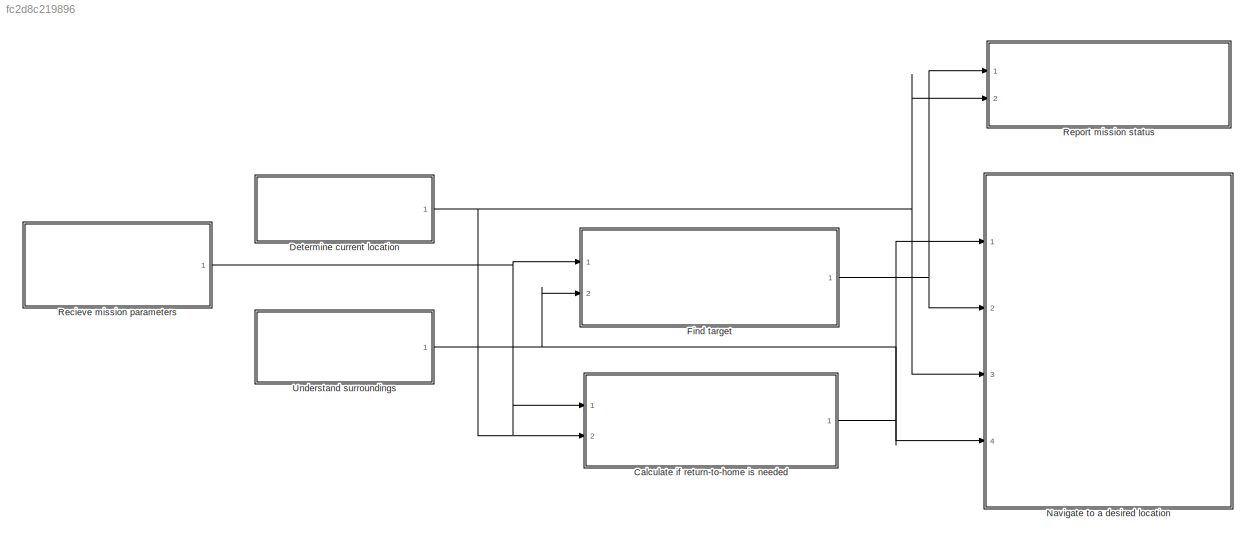
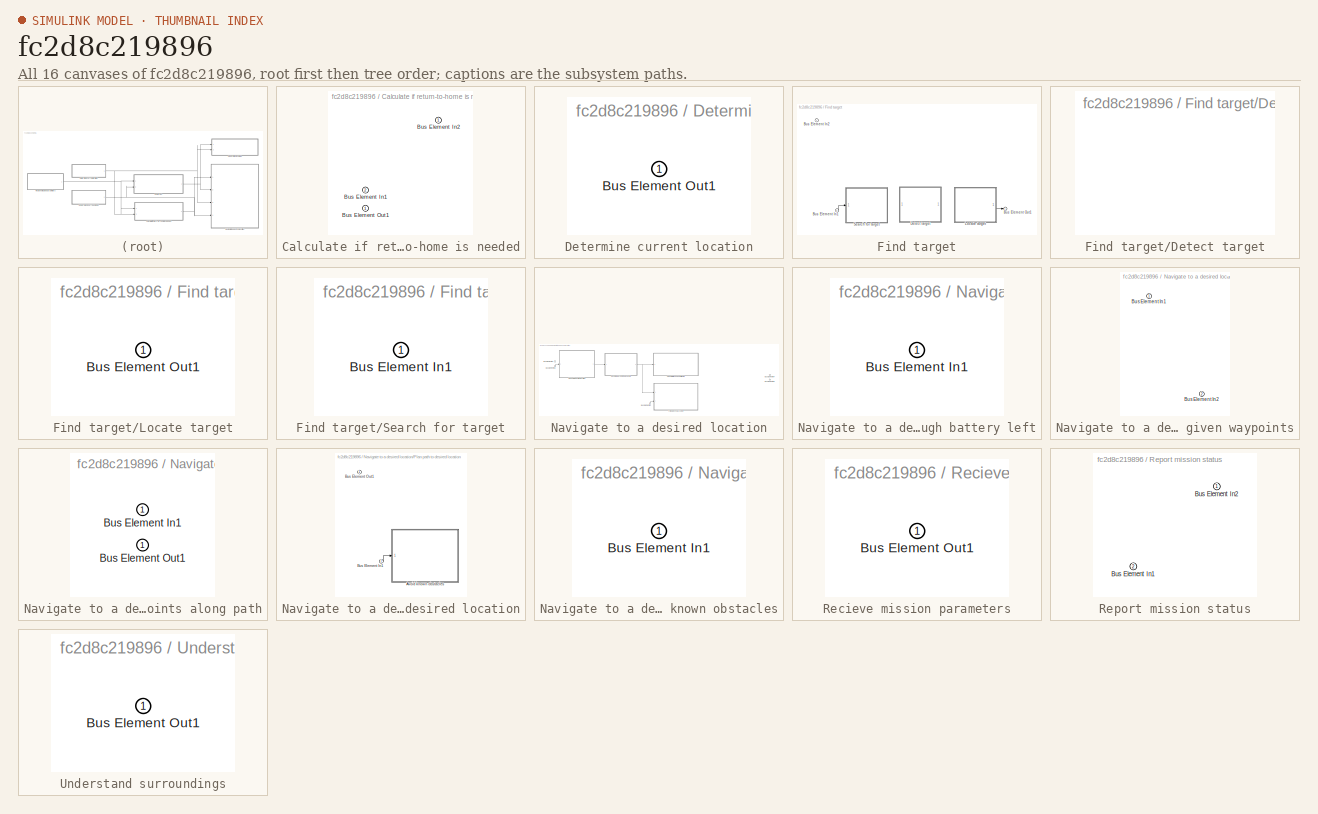
[diagram: thumbnail index - all 16 canvases of the model, root first then tree order]
MODEL slx_fc2d8c219896
KIND model
CONFIG AbsTol = auto
CONFIG EnableMultiTasking = off
CONFIG FixedStep = auto
CONFIG MaxStep = auto
CONFIG MinStep = auto
CONFIG RelTol = 1e-3
CONFIG SampleTimeConstraint = Unconstrained
CONFIG SolverName = VariableStepAuto
CONFIG StartTime = 0.0
CONFIG StopTime = 10.0
BLOCK [SubSystem] Calculate if return-to-home is needed
  PortSchema = {"entries":[{"content":{"headerSize":26,"margin":15,"minimumSpacing":25,"sides":[{"content":{"connectorIds":["In2","In1"]},"type":"ConnectorPlacement.EquallySpacedRectSide","uuid":"39ab5f6e-200b-418c-957c-0427e0a2d192"},{"content":{"connectorIds":["Out1"],"side":"RIGHT"},"type":"ConnectorPlacement.EquallySpacedRectSide","uuid":"2abcd6b7-9ef0-4689-b904-6f1a8a48cdb7"},{"content":{"connectorIds":[],"...<+296ch>
  Ports = [2, 1]
  RequestExecContextInheritance = off
BLOCK [Inport] Calculate if return-to-home is needed/Bus Element In1
  Port = 2
BLOCK [Inport] Calculate if return-to-home is needed/Bus Element In2
BLOCK [Outport] Calculate if return-to-home is needed/Bus Element Out1
BLOCK [SubSystem] Determine current location
  PortSchema = {"entries":[{"content":{"headerSize":26,"margin":15,"minimumSpacing":25,"sides":[{"content":{"connectorIds":[]},"type":"ConnectorPlacement.EquallySpacedRectSide","uuid":"39ab5f6e-200b-418c-957c-0427e0a2d192"},{"content":{"connectorIds":["Out1"],"side":"RIGHT"},"type":"ConnectorPlacement.EquallySpacedRectSide","uuid":"2abcd6b7-9ef0-4689-b904-6f1a8a48cdb7"},{"content":{"connectorIds":[],"side":"TOP"...<+285ch>  <repeated x4 — deduplicated; at blocks: Determine current location, Locate target, Recieve mission parameters, Understand surroundings>
  Ports = [0, 1]
  RequestExecContextInheritance = off
BLOCK [Outport] Determine current location/Bus Element Out1
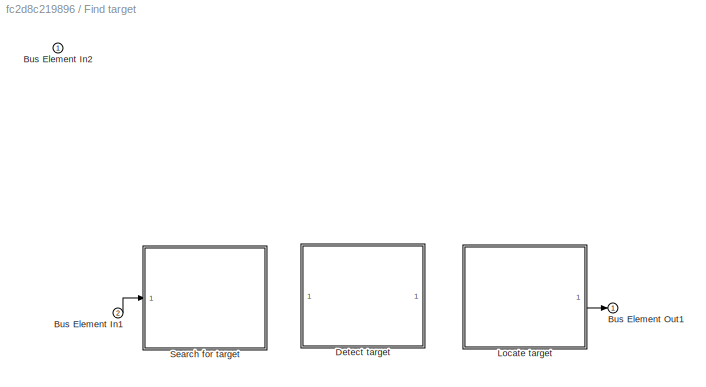
BLOCK [SubSystem] Find target
  PortSchema = {"entries":[{"content":{"headerSize":26,"margin":15,"minimumSpacing":25,"sides":[{"content":{"connectorIds":["In1","In2"]},"type":"ConnectorPlacement.EquallySpacedRectSide","uuid":"39ab5f6e-200b-418c-957c-0427e0a2d192"},{"content":{"connectorIds":["Out1"],"side":"RIGHT"},"type":"ConnectorPlacement.EquallySpacedRectSide","uuid":"2abcd6b7-9ef0-4689-b904-6f1a8a48cdb7"},{"content":{"connectorIds":[],"...<+296ch>
  Ports = [2, 1]
  RequestExecContextInheritance = off
BLOCK [Inport] Find target/Bus Element In1
  Port = 2
BLOCK [Inport] Find target/Bus Element In2
BLOCK [Outport] Find target/Bus Element Out1
BLOCK [SubSystem] Find target/Detect target
  PortSchema = {"entries":[{"content":{"headerSize":26,"margin":15,"minimumSpacing":25,"sides":[{"content":{"connectorIds":[]},"type":"ConnectorPlacement.EquallySpacedRectSide","uuid":"39ab5f6e-200b-418c-957c-0427e0a2d192"},{"content":{"connectorIds":[],"side":"RIGHT"},"type":"ConnectorPlacement.EquallySpacedRectSide","uuid":"2abcd6b7-9ef0-4689-b904-6f1a8a48cdb7"},{"content":{"connectorIds":[],"side":"TOP"},"typ...<+279ch>
  Ports = []
  RequestExecContextInheritance = off
BLOCK [SubSystem] Find target/Locate target
  Ports = [0, 1]
  RequestExecContextInheritance = off
BLOCK [Outport] Find target/Locate target/Bus Element Out1
BLOCK [SubSystem] Find target/Search for target
  PortSchema = {"entries":[{"content":{"headerSize":26,"margin":15,"minimumSpacing":25,"sides":[{"content":{"connectorIds":["In1"]},"type":"ConnectorPlacement.EquallySpacedRectSide","uuid":"39ab5f6e-200b-418c-957c-0427e0a2d192"},{"content":{"connectorIds":[],"side":"RIGHT"},"type":"ConnectorPlacement.EquallySpacedRectSide","uuid":"2abcd6b7-9ef0-4689-b904-6f1a8a48cdb7"},{"content":{"connectorIds":[],"side":"TOP"}...<+284ch>  <repeated x3 — deduplicated; at blocks: Search for target, Calculate if enough battery left, Avoid known obstacles>
  Ports = [1]
  RequestExecContextInheritance = off
BLOCK [Inport] Find target/Search for target/Bus Element In1
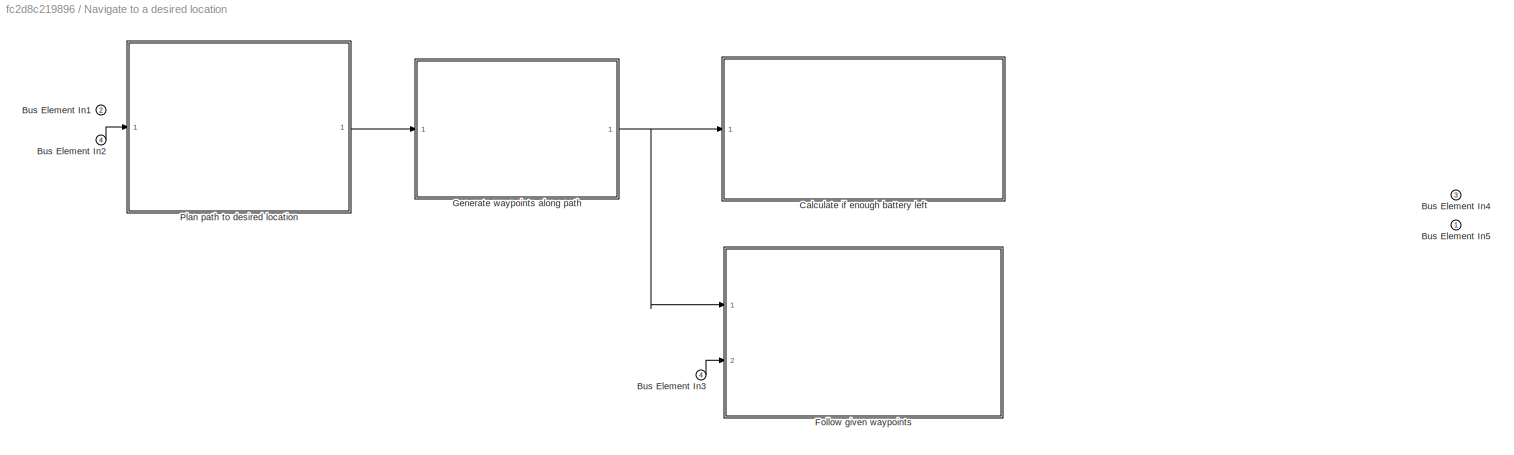
BLOCK [SubSystem] Navigate to a desired location
  PortSchema = {"entries":[{"content":{"headerSize":26,"margin":15,"minimumSpacing":25,"sides":[{"content":{"connectorIds":["In3","In2","In4","In1"]},"type":"ConnectorPlacement.EquallySpacedRectSide","uuid":"39ab5f6e-200b-418c-957c-0427e0a2d192"},{"content":{"connectorIds":[],"side":"RIGHT"},"type":"ConnectorPlacement.EquallySpacedRectSide","uuid":"2abcd6b7-9ef0-4689-b904-6f1a8a48cdb7"},{"content":{"connectorIds...<+302ch>
  Ports = [4]
  RequestExecContextInheritance = off
BLOCK [Inport] Navigate to a desired location/Bus Element In1
  Port = 2
BLOCK [Inport] Navigate to a desired location/Bus Element In2
  Port = 4
BLOCK [Inport] Navigate to a desired location/Bus Element In3
  Port = 4
BLOCK [Inport] Navigate to a desired location/Bus Element In4
  Port = 3
BLOCK [Inport] Navigate to a desired location/Bus Element In5
BLOCK [SubSystem] Navigate to a desired location/Calculate if enough battery left
  Ports = [1]
  RequestExecContextInheritance = off
BLOCK [Inport] Navigate to a desired location/Calculate if enough battery left/Bus Element In1
BLOCK [SubSystem] Navigate to a desired location/Follow given waypoints
  PortSchema = {"entries":[{"content":{"headerSize":26,"margin":15,"minimumSpacing":25,"sides":[{"content":{"connectorIds":["In1","In2"]},"type":"ConnectorPlacement.EquallySpacedRectSide","uuid":"39ab5f6e-200b-418c-957c-0427e0a2d192"},{"content":{"connectorIds":[],"side":"RIGHT"},"type":"ConnectorPlacement.EquallySpacedRectSide","uuid":"2abcd6b7-9ef0-4689-b904-6f1a8a48cdb7"},{"content":{"connectorIds":[],"side":...<+290ch>
  Ports = [2]
  RequestExecContextInheritance = off
BLOCK [Inport] Navigate to a desired location/Follow given waypoints/Bus Element In1
BLOCK [Inport] Navigate to a desired location/Follow given waypoints/Bus Element In2
  Port = 2
BLOCK [SubSystem] Navigate to a desired location/Generate waypoints along path
  PortSchema = {"entries":[{"content":{"headerSize":26,"margin":15,"minimumSpacing":25,"sides":[{"content":{"connectorIds":["In1"]},"type":"ConnectorPlacement.EquallySpacedRectSide","uuid":"39ab5f6e-200b-418c-957c-0427e0a2d192"},{"content":{"connectorIds":["Out1"],"side":"RIGHT"},"type":"ConnectorPlacement.EquallySpacedRectSide","uuid":"2abcd6b7-9ef0-4689-b904-6f1a8a48cdb7"},{"content":{"connectorIds":[],"side":...<+290ch>
  Ports = [1, 1]
  RequestExecContextInheritance = off
BLOCK [Inport] Navigate to a desired location/Generate waypoints along path/Bus Element In1
BLOCK [Outport] Navigate to a desired location/Generate waypoints along path/Bus Element Out1
BLOCK [SubSystem] Navigate to a desired location/Plan path to desired location
  PortSchema = {"entries":[{"content":{"headerSize":26,"margin":15,"minimumSpacing":25,"sides":[{"content":{"connectorIds":["In1"]},"type":"ConnectorPlacement.EquallySpacedRectSide","uuid":"39ab5f6e-200b-418c-957c-0427e0a2d192"},{"content":{"connectorIds":["Out1"],"side":"RIGHT"},"type":"ConnectorPlacement.EquallySpacedRectSide","uuid":"2abcd6b7-9ef0-4689-b904-6f1a8a48cdb7"},{"content":{"connectorIds":[],"side":...<+290ch>
  Ports = [1, 1]
  RequestExecContextInheritance = off
BLOCK [SubSystem] Navigate to a desired location/Plan path to desired location/Avoid known obstacles
  Ports = [1]
  RequestExecContextInheritance = off
BLOCK [Inport] Navigate to a desired location/Plan path to desired location/Avoid known obstacles/Bus Element In1
BLOCK [Inport] Navigate to a desired location/Plan path to desired location/Bus Element In1
BLOCK [Outport] Navigate to a desired location/Plan path to desired location/Bus Element Out1
BLOCK [SubSystem] Recieve mission parameters
  Ports = [0, 1]
  RequestExecContextInheritance = off
BLOCK [Outport] Recieve mission parameters/Bus Element Out1
BLOCK [SubSystem] Report mission status
  PortSchema = {"entries":[{"content":{"headerSize":26,"margin":15,"minimumSpacing":25,"sides":[{"content":{"connectorIds":["In2","In1"]},"type":"ConnectorPlacement.EquallySpacedRectSide","uuid":"39ab5f6e-200b-418c-957c-0427e0a2d192"},{"content":{"connectorIds":[],"side":"RIGHT"},"type":"ConnectorPlacement.EquallySpacedRectSide","uuid":"2abcd6b7-9ef0-4689-b904-6f1a8a48cdb7"},{"content":{"connectorIds":[],"side":...<+290ch>
  Ports = [2]
  RequestExecContextInheritance = off
BLOCK [Inport] Report mission status/Bus Element In1
  Port = 2
BLOCK [Inport] Report mission status/Bus Element In2
BLOCK [SubSystem] Understand surroundings
  Ports = [0, 1]
  RequestExecContextInheritance = off
BLOCK [Outport] Understand surroundings/Bus Element Out1
LINE Calculate if return-to-home is needed:1 -> Navigate to a desired location:1
NET Determine current location:1 -> Calculate if return-to-home is needed:2, Navigate to a desired location:3, Report mission status:2
LINE Find target/Bus Element In1:1 -> Find target/Search for target:1
LINE Find target/Locate target:1 -> Find target/Bus Element Out1:1
NET Find target:1 -> Navigate to a desired location:2, Report mission status:1
LINE Navigate to a desired location/Bus Element In2:1 -> Navigate to a desired location/Plan path to desired location:1
LINE Navigate to a desired location/Bus Element In3:1 -> Navigate to a desired location/Follow given waypoints:2
NET Navigate to a desired location/Generate waypoints along path:1 -> Navigate to a desired location/Calculate if enough battery left:1, Navigate to a desired location/Follow given waypoints:1
LINE Navigate to a desired location/Plan path to desired location/Bus Element In1:1 -> Navigate to a desired location/Plan path to desired location/Avoid known obstacles:1
LINE Navigate to a desired location/Plan path to desired location:1 -> Navigate to a desired location/Generate waypoints along path:1
NET Recieve mission parameters:1 -> Calculate if return-to-home is needed:1, Find target:1
NET Understand surroundings:1 -> Find target:2, Navigate to a desired location:4
note: NET lines group one-source signal fan-out (src -> all destinations, sorted); 1:1 wires keep LINE
